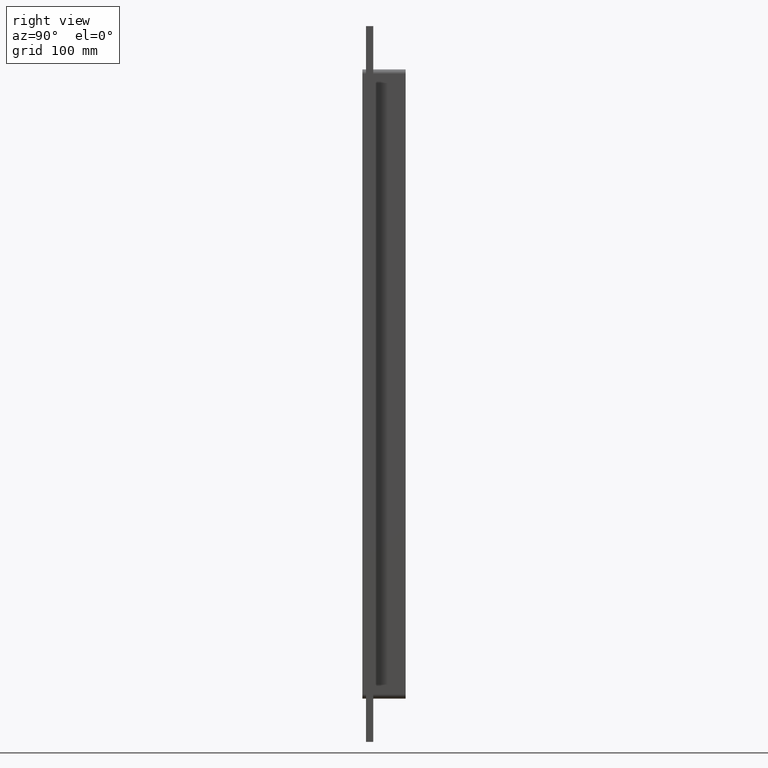
[diagram: clean part render]
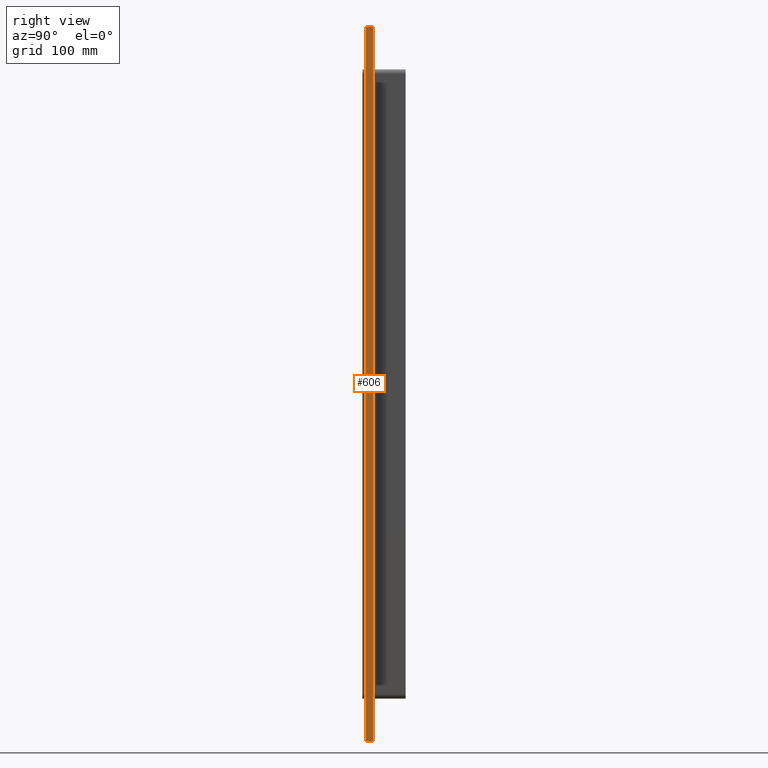
[diagram: same view with one face highlighted and labeled with its STEP entity id]
A machine part, right view. The second image highlights one B-rep face of the part: STEP entity #606.
In plain terms, the highlighted planar face has unit normal (1, 0, 0).
Its self-contained STEP definition (entity closure, byte-faithful):
#370=CARTESIAN_POINT('',(100.25000000000003,10.0,-497.0));
#371=VERTEX_POINT('',#370);
#388=CARTESIAN_POINT('',(100.25000000000003,10.0,497.0));
#389=VERTEX_POINT('',#388);
#396=CARTESIAN_POINT('',(100.25000000000003,10.0,497.0));
#397=DIRECTION('',(0.0,0.0,-1.0));
#398=VECTOR('',#397,994.0);
#399=LINE('',#396,#398);
#400=EDGE_CURVE('',#389,#371,#399,.T.);
#480=CARTESIAN_POINT('',(100.25000000000003,0.0,-497.0));
#481=VERTEX_POINT('',#480);
#490=CARTESIAN_POINT('',(100.25000000000003,0.0,497.0));
#491=VERTEX_POINT('',#490);
#492=CARTESIAN_POINT('',(100.25000000000003,0.0,497.0));
#493=DIRECTION('',(0.0,0.0,-1.0));
#494=VECTOR('',#493,994.0);
#495=LINE('',#492,#494);
#496=EDGE_CURVE('',#491,#481,#495,.T.);
#585=CARTESIAN_POINT('',(100.25000000000003,0.0,497.0));
#586=DIRECTION('',(1.0,0.0,0.0));
#587=DIRECTION('',(0.0,0.0,-1.0));
#588=AXIS2_PLACEMENT_3D('',#585,#586,#587);
#589=PLANE('',#588);
#590=ORIENTED_EDGE('',*,*,#496,.T.);
#591=CARTESIAN_POINT('',(100.25000000000003,0.0,-497.0));
#592=DIRECTION('',(0.0,1.0,0.0));
#593=VECTOR('',#592,10.0);
#594=LINE('',#591,#593);
#595=EDGE_CURVE('',#481,#371,#594,.T.);
#596=ORIENTED_EDGE('',*,*,#595,.T.);
#597=ORIENTED_EDGE('',*,*,#400,.F.);
#598=CARTESIAN_POINT('',(100.25000000000003,0.0,497.0));
#599=DIRECTION('',(0.0,1.0,0.0));
#600=VECTOR('',#599,10.0);
#601=LINE('',#598,#600);
#602=EDGE_CURVE('',#491,#389,#601,.T.);
#603=ORIENTED_EDGE('',*,*,#602,.F.);
#604=EDGE_LOOP('',(#590,#596,#597,#603));
#605=FACE_OUTER_BOUND('',#604,.T.);
#606=ADVANCED_FACE('',(#605),#589,.T.);